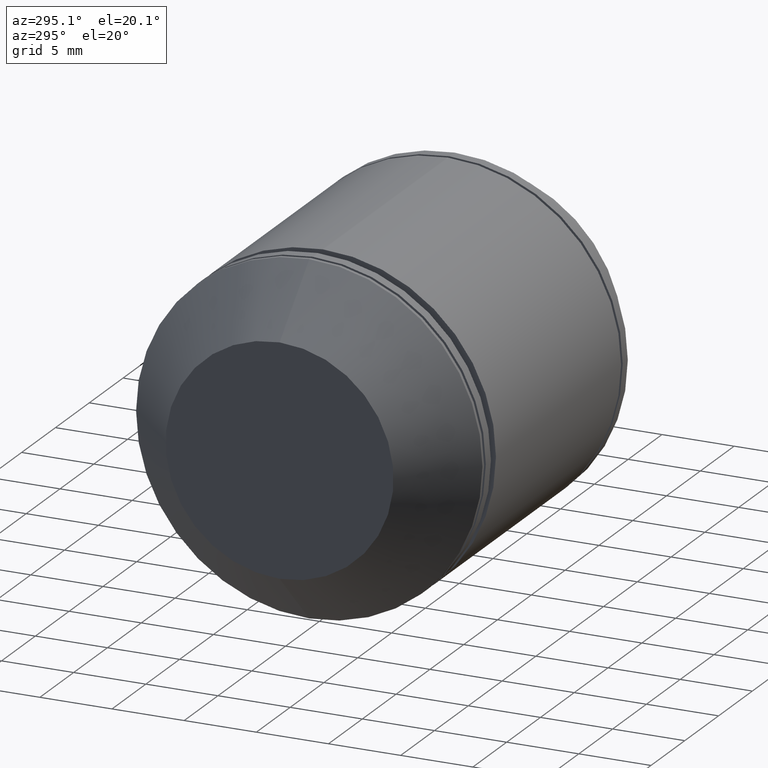
[diagram: clean part render]
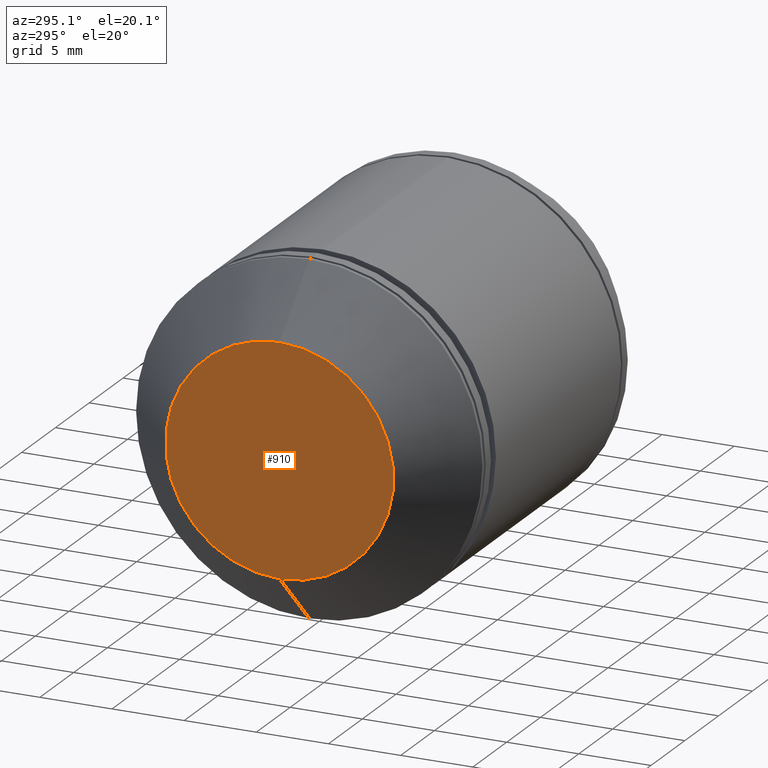
[diagram: same view with one face highlighted and labeled with its STEP entity id]
A machine part, auxiliary view. The second image highlights one B-rep face of the part: STEP entity #910.
In plain terms, the highlighted planar face has unit normal (-1, 0, 0).
Its self-contained STEP definition (entity closure, byte-faithful):
#53 = FACE_OUTER_BOUND ( 'NONE', #453, .T. ) ;
#92 = EDGE_CURVE ( 'NONE', #620, #612, #106, .T. ) ;
#106 = CIRCLE ( 'NONE', #432, 7.900000000000000355 ) ;
#108 = AXIS2_PLACEMENT_3D ( 'NONE', #1008, #230, #741 ) ;
#230 = DIRECTION ( 'NONE',  ( -1.000000000000000000, 0.000000000000000000, 0.000000000000000000 ) ) ;
#280 = ORIENTED_EDGE ( 'NONE', *, *, #92, .F. ) ;
#308 = CIRCLE ( 'NONE', #545, 7.900000000000000355 ) ;
#418 = CARTESIAN_POINT ( 'NONE',  ( -30.89000000000000057, 0.000000000000000000, -7.900000000000000355 ) ) ;
#426 = DIRECTION ( 'NONE',  ( 0.000000000000000000, 0.000000000000000000, -1.000000000000000000 ) ) ;
#432 = AXIS2_PLACEMENT_3D ( 'NONE', #1028, #845, #426 ) ;
#453 = EDGE_LOOP ( 'NONE', ( #455, #280 ) ) ;
#455 = ORIENTED_EDGE ( 'NONE', *, *, #604, .F. ) ;
#506 = DIRECTION ( 'NONE',  ( 1.000000000000000000, 0.000000000000000000, 0.000000000000000000 ) ) ;
#517 = CARTESIAN_POINT ( 'NONE',  ( -30.89000000000000057, 1.218523565151615986E-15, 7.900000000000000355 ) ) ;
#545 = AXIS2_PLACEMENT_3D ( 'NONE', #846, #506, #859 ) ;
#604 = EDGE_CURVE ( 'NONE', #612, #620, #308, .T. ) ;
#612 = VERTEX_POINT ( 'NONE', #418 ) ;
#620 = VERTEX_POINT ( 'NONE', #517 ) ;
#741 = DIRECTION ( 'NONE',  ( 0.000000000000000000, 0.000000000000000000, 1.000000000000000000 ) ) ;
#845 = DIRECTION ( 'NONE',  ( 1.000000000000000000, 0.000000000000000000, 0.000000000000000000 ) ) ;
#846 = CARTESIAN_POINT ( 'NONE',  ( -30.89000000000000057, 0.000000000000000000, 0.000000000000000000 ) ) ;
#859 = DIRECTION ( 'NONE',  ( 0.000000000000000000, 0.000000000000000000, -1.000000000000000000 ) ) ;
#910 = ADVANCED_FACE ( 'NONE', ( #53 ), #1004, .T. ) ;
#1004 = PLANE ( 'NONE',  #108 ) ;
#1008 = CARTESIAN_POINT ( 'NONE',  ( -30.89000000000000057, -8.083844766969599468E-15, 0.000000000000000000 ) ) ;
#1028 = CARTESIAN_POINT ( 'NONE',  ( -30.89000000000000057, 0.000000000000000000, 0.000000000000000000 ) ) ;